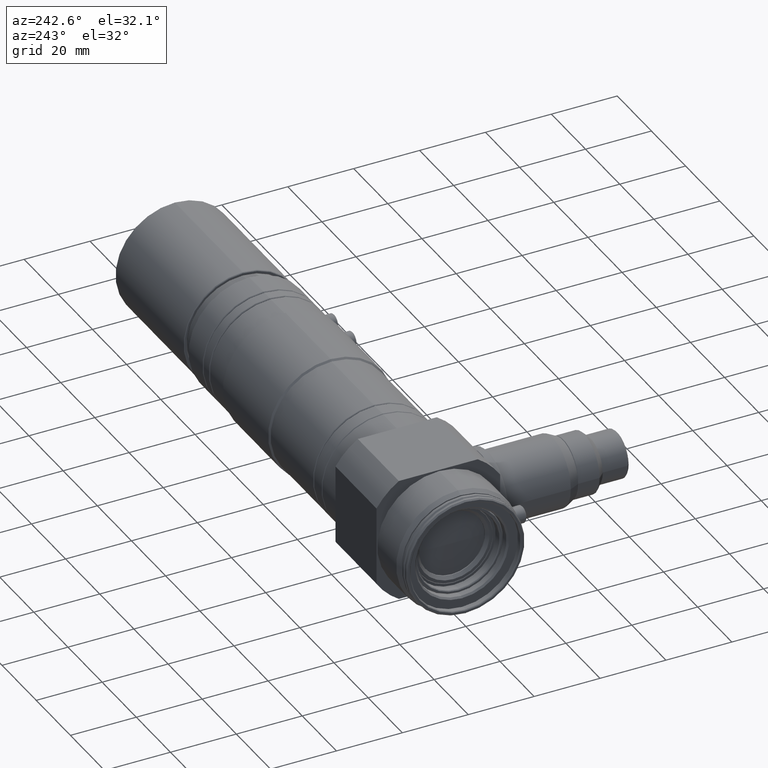
[diagram: clean part render]
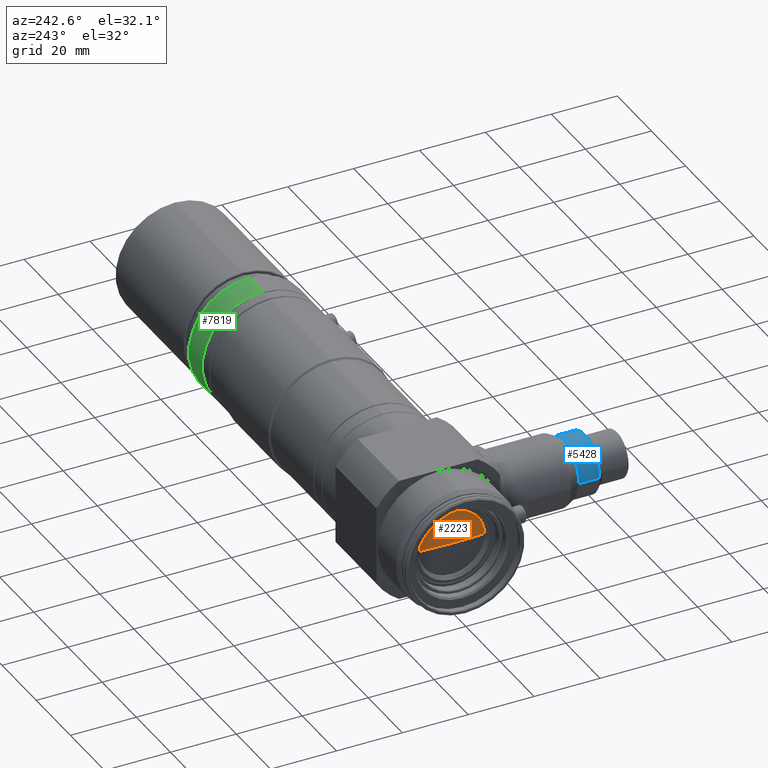
[diagram: same view with three faces highlighted in distinct colors, each labeled with its STEP entity id]
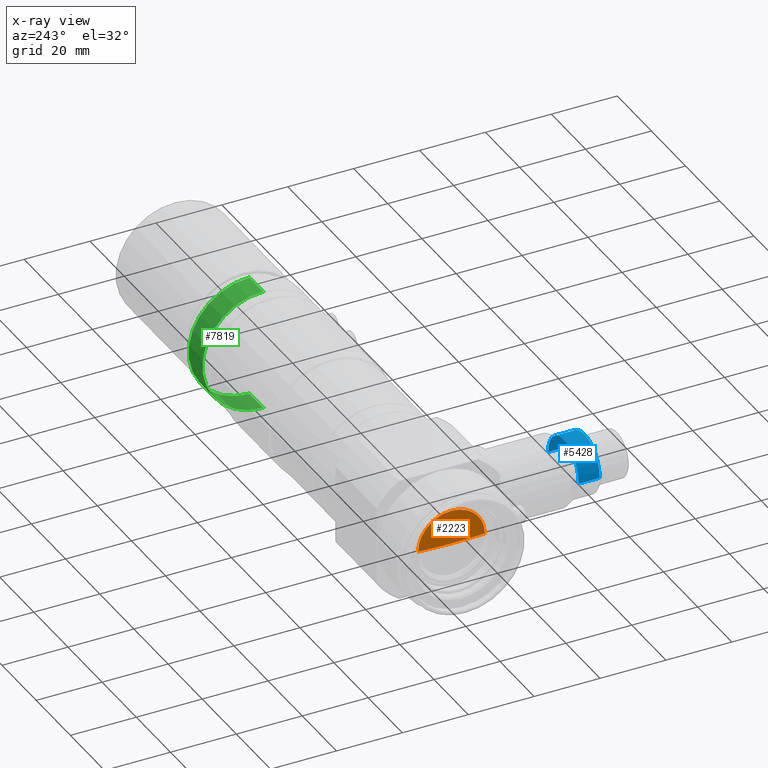
[diagram: x-ray of the same camera — body ghosted, the three highlighted faces saturated]
A machine part, auxiliary view with three faces highlighted in distinct colors.
The next image is the same camera in x-ray (body ghosted, the three faces saturated) — at least one of them is partly hidden behind the body in this view.
Their STEP definitions:

[orange] entity #2223 — the highlighted spherical surface has radius 131.8 mm.
#147 = ORIENTED_EDGE ( 'NONE', *, *, #2726, .F. ) ;
#150 = DIRECTION ( 'NONE',  ( 0.0000000000000000000, 1.000000000000000000, 1.224646799147353000E-016 ) ) ;
#172 = EDGE_CURVE ( 'NONE', #6567, #4218, #610, .T. ) ;
#414 = CIRCLE ( 'NONE', #4610, 131.7999999999999800 ) ;
#519 = EDGE_LOOP ( 'NONE', ( #147, #3104, #5121, #2106 ) ) ;
#610 = CIRCLE ( 'NONE', #5006, 131.8000000000000100 ) ;
#734 = VERTEX_POINT ( 'NONE', #6231 ) ;
#2040 = CARTESIAN_POINT ( 'NONE',  ( 8.448532300058333900, 0.0000000000000000000, 0.0000000000000000000 ) ) ;
#2106 = ORIENTED_EDGE ( 'NONE', *, *, #172, .T. ) ;
#2223 = ADVANCED_FACE ( 'NONE', ( #3598 ), #3798, .T. ) ;
#2524 = DIRECTION ( 'NONE',  ( -0.0000000000000000000, 0.0000000000000000000, 1.000000000000000000 ) ) ;
#2673 = DIRECTION ( 'NONE',  ( 0.0000000000000000000, 0.0000000000000000000, 1.000000000000000000 ) ) ;
#2726 = EDGE_CURVE ( 'NONE', #5242, #4218, #414, .T. ) ;
#2886 = CARTESIAN_POINT ( 'NONE',  ( 8.060974633347289100, -2.070352886147430100E-013, 0.0000000000000000000 ) ) ;
#2887 = CIRCLE ( 'NONE', #6323, 10.10000000000006700 ) ;
#3086 = CIRCLE ( 'NONE', #6869, 10.10000000000006700 ) ;
#3104 = ORIENTED_EDGE ( 'NONE', *, *, #7690, .T. ) ;
#3145 = CARTESIAN_POINT ( 'NONE',  ( 139.8609746333472700, -2.151057110211240800E-013, 0.0000000000000000000 ) ) ;
#3570 = DIRECTION ( 'NONE',  ( -1.000000000000000000, -0.0000000000000000000, -0.0000000000000000000 ) ) ;
#3598 = FACE_OUTER_BOUND ( 'NONE', #519, .T. ) ;
#3798 = SPHERICAL_SURFACE ( 'NONE', #6156, 131.7999999999999800 ) ;
#3868 = DIRECTION ( 'NONE',  ( 0.0000000000000000000, 1.224646799147353200E-016, -1.000000000000000000 ) ) ;
#4218 = VERTEX_POINT ( 'NONE', #2886 ) ;
#4345 = CARTESIAN_POINT ( 'NONE',  ( 8.448532300058341000, -10.10000000000030300, -1.236893267138837700E-015 ) ) ;
#4610 = AXIS2_PLACEMENT_3D ( 'NONE', #7611, #3868, #150 ) ;
#4932 = DIRECTION ( 'NONE',  ( -0.0000000000000000000, 0.0000000000000000000, -1.000000000000000000 ) ) ;
#5006 = AXIS2_PLACEMENT_3D ( 'NONE', #3145, #2524, #6246 ) ;
#5120 = EDGE_CURVE ( 'NONE', #734, #6567, #3086, .T. ) ;
#5121 = ORIENTED_EDGE ( 'NONE', *, *, #5120, .T. ) ;
#5242 = VERTEX_POINT ( 'NONE', #4345 ) ;
#5568 = CARTESIAN_POINT ( 'NONE',  ( 8.448532300058341000, 10.10000000000008800, 0.0000000000000000000 ) ) ;
#6156 = AXIS2_PLACEMENT_3D ( 'NONE', #7420, #4932, #6175 ) ;
#6175 = DIRECTION ( 'NONE',  ( 0.0000000000000000000, 1.000000000000000000, 0.0000000000000000000 ) ) ;
#6231 = CARTESIAN_POINT ( 'NONE',  ( 8.448532300058333900, 1.236893267138834900E-015, 10.10000000000006700 ) ) ;
#6246 = DIRECTION ( 'NONE',  ( 1.000000000000000000, 0.0000000000000000000, 0.0000000000000000000 ) ) ;
#6323 = AXIS2_PLACEMENT_3D ( 'NONE', #2040, #6402, #2673 ) ;
#6402 = DIRECTION ( 'NONE',  ( -1.000000000000000000, -0.0000000000000000000, -0.0000000000000000000 ) ) ;
#6567 = VERTEX_POINT ( 'NONE', #5568 ) ;
#6869 = AXIS2_PLACEMENT_3D ( 'NONE', #7313, #3570, #7962 ) ;
#7313 = CARTESIAN_POINT ( 'NONE',  ( 8.448532300058333900, 0.0000000000000000000, 0.0000000000000000000 ) ) ;
#7420 = CARTESIAN_POINT ( 'NONE',  ( 139.8609746333472700, -2.151057110211240800E-013, 0.0000000000000000000 ) ) ;
#7611 = CARTESIAN_POINT ( 'NONE',  ( 139.8609746333472700, -2.151057110211240800E-013, 0.0000000000000000000 ) ) ;
#7690 = EDGE_CURVE ( 'NONE', #5242, #734, #2887, .T. ) ;
#7962 = DIRECTION ( 'NONE',  ( 0.0000000000000000000, 0.0000000000000000000, 1.000000000000000000 ) ) ;

[blue] entity #5428 — the highlighted cylindrical surface (edge-blend (fillet) strip) has radius 9 mm, axis along (0, -1, -0).
#425 = EDGE_CURVE ( 'NONE', #3670, #3927, #1769, .T. ) ;
#510 = DIRECTION ( 'NONE',  ( 1.000000000000000000, 0.0000000000000000000, 0.0000000000000000000 ) ) ;
#528 = VERTEX_POINT ( 'NONE', #2315 ) ;
#1458 = DIRECTION ( 'NONE',  ( 1.429687188328460900E-016, -1.000000000000000000, -0.0000000000000000000 ) ) ;
#1542 = CARTESIAN_POINT ( 'NONE',  ( 19.13177593066235000, -50.49999999999997900, 0.0000000000000000000 ) ) ;
#1769 = LINE ( 'NONE', #6496, #4906 ) ;
#1822 = LINE ( 'NONE', #7063, #4948 ) ;
#1876 = ORIENTED_EDGE ( 'NONE', *, *, #425, .T. ) ;
#2239 = CIRCLE ( 'NONE', #3161, 8.999999999999998200 ) ;
#2315 = CARTESIAN_POINT ( 'NONE',  ( 37.13177593066234300, -44.19999999999998200, 0.0000000000000000000 ) ) ;
#2326 = EDGE_LOOP ( 'NONE', ( #8010, #1876, #3663, #2669 ) ) ;
#2357 = CARTESIAN_POINT ( 'NONE',  ( 37.13177593066234300, -50.49999999999997900, 1.102182119232618100E-015 ) ) ;
#2669 = ORIENTED_EDGE ( 'NONE', *, *, #5466, .F. ) ;
#2936 = EDGE_CURVE ( 'NONE', #528, #3670, #7536, .T. ) ;
#3161 = AXIS2_PLACEMENT_3D ( 'NONE', #8002, #4254, #510 ) ;
#3663 = ORIENTED_EDGE ( 'NONE', *, *, #6107, .F. ) ;
#3670 = VERTEX_POINT ( 'NONE', #4389 ) ;
#3714 = DIRECTION ( 'NONE',  ( 1.429687188328460900E-016, -1.000000000000000000, -0.0000000000000000000 ) ) ;
#3927 = VERTEX_POINT ( 'NONE', #1542 ) ;
#4048 = VERTEX_POINT ( 'NONE', #2357 ) ;
#4254 = DIRECTION ( 'NONE',  ( 1.429687188328460900E-016, -1.000000000000000000, -0.0000000000000000000 ) ) ;
#4389 = CARTESIAN_POINT ( 'NONE',  ( 19.13177593066234300, -44.19999999999998200, 1.102182119232618100E-015 ) ) ;
#4533 = DIRECTION ( 'NONE',  ( 1.429687188328460900E-016, -1.000000000000000000, -0.0000000000000000000 ) ) ;
#4555 = CARTESIAN_POINT ( 'NONE',  ( 28.13177593066234600, -60.60000000000000100, 0.0000000000000000000 ) ) ;
#4894 = AXIS2_PLACEMENT_3D ( 'NONE', #4555, #4533, #5192 ) ;
#4906 = VECTOR ( 'NONE', #5087, 1000.000000000000000 ) ;
#4948 = VECTOR ( 'NONE', #1458, 1000.000000000000000 ) ;
#5087 = DIRECTION ( 'NONE',  ( 1.429687188328460900E-016, -1.000000000000000000, -0.0000000000000000000 ) ) ;
#5153 = CYLINDRICAL_SURFACE ( 'NONE', #4894, 8.999999999999998200 ) ;
#5192 = DIRECTION ( 'NONE',  ( 1.000000000000000000, 0.0000000000000000000, 0.0000000000000000000 ) ) ;
#5428 = ADVANCED_FACE ( 'NONE', ( #5739 ), #5153, .T. ) ;
#5466 = EDGE_CURVE ( 'NONE', #528, #4048, #1822, .T. ) ;
#5739 = FACE_OUTER_BOUND ( 'NONE', #2326, .T. ) ;
#6107 = EDGE_CURVE ( 'NONE', #4048, #3927, #2239, .T. ) ;
#6496 = CARTESIAN_POINT ( 'NONE',  ( 19.13177593066234600, -60.60000000000000100, 1.102182119232617900E-015 ) ) ;
#6535 = AXIS2_PLACEMENT_3D ( 'NONE', #7463, #3714, #8092 ) ;
#7063 = CARTESIAN_POINT ( 'NONE',  ( 37.13177593066234300, -60.60000000000000100, 0.0000000000000000000 ) ) ;
#7463 = CARTESIAN_POINT ( 'NONE',  ( 28.13177593066234300, -44.19999999999998200, 0.0000000000000000000 ) ) ;
#7536 = CIRCLE ( 'NONE', #6535, 9.000000000000001800 ) ;
#8002 = CARTESIAN_POINT ( 'NONE',  ( 28.13177593066234600, -50.49999999999997900, 0.0000000000000000000 ) ) ;
#8010 = ORIENTED_EDGE ( 'NONE', *, *, #2936, .T. ) ;
#8092 = DIRECTION ( 'NONE',  ( 1.000000000000000000, 0.0000000000000000000, 0.0000000000000000000 ) ) ;

[green] entity #7819 — the highlighted cylindrical surface (partial cylindrical patch) has radius 18.5 mm, axis along (-1, -0, -0).
#272 = VECTOR ( 'NONE', #1555, 1000.000000000000000 ) ;
#405 = CARTESIAN_POINT ( 'NONE',  ( 126.6309746333472200, 2.265596578422620000E-015, -18.50000000000013500 ) ) ;
#536 = AXIS2_PLACEMENT_3D ( 'NONE', #2388, #6745, #3003 ) ;
#615 = VERTEX_POINT ( 'NONE', #7374 ) ;
#620 = EDGE_LOOP ( 'NONE', ( #6069, #1479, #6116, #5613 ) ) ;
#952 = DIRECTION ( 'NONE',  ( 0.0000000000000000000, 0.0000000000000000000, 1.000000000000000000 ) ) ;
#1020 = VERTEX_POINT ( 'NONE', #1468 ) ;
#1053 = CIRCLE ( 'NONE', #536, 18.50000000000013500 ) ;
#1408 = CARTESIAN_POINT ( 'NONE',  ( 126.6309746333472200, 0.0000000000000000000, 18.50000000000013500 ) ) ;
#1468 = CARTESIAN_POINT ( 'NONE',  ( 118.5309746333471700, 2.265596578422620000E-015, -18.50000000000013500 ) ) ;
#1478 = DIRECTION ( 'NONE',  ( -1.000000000000000000, -0.0000000000000000000, -0.0000000000000000000 ) ) ;
#1479 = ORIENTED_EDGE ( 'NONE', *, *, #7811, .T. ) ;
#1555 = DIRECTION ( 'NONE',  ( -1.000000000000000000, -0.0000000000000000000, -0.0000000000000000000 ) ) ;
#2069 = DIRECTION ( 'NONE',  ( -1.000000000000000000, -0.0000000000000000000, -0.0000000000000000000 ) ) ;
#2388 = CARTESIAN_POINT ( 'NONE',  ( 118.5309746333471700, 0.0000000000000000000, 0.0000000000000000000 ) ) ;
#2731 = CARTESIAN_POINT ( 'NONE',  ( 8.060974633347258900, 0.0000000000000000000, 18.50000000000013500 ) ) ;
#3003 = DIRECTION ( 'NONE',  ( 0.0000000000000000000, 0.0000000000000000000, 1.000000000000000000 ) ) ;
#3084 = VECTOR ( 'NONE', #1478, 1000.000000000000000 ) ;
#3181 = CYLINDRICAL_SURFACE ( 'NONE', #5988, 18.50000000000013500 ) ;
#4199 = CIRCLE ( 'NONE', #6848, 18.50000000000013500 ) ;
#4703 = CARTESIAN_POINT ( 'NONE',  ( 8.060974633347258900, 0.0000000000000000000, 0.0000000000000000000 ) ) ;
#4951 = LINE ( 'NONE', #2731, #3084 ) ;
#5613 = ORIENTED_EDGE ( 'NONE', *, *, #7139, .F. ) ;
#5809 = CARTESIAN_POINT ( 'NONE',  ( 126.6309746333472200, 0.0000000000000000000, 0.0000000000000000000 ) ) ;
#5846 = VERTEX_POINT ( 'NONE', #1408 ) ;
#5921 = CARTESIAN_POINT ( 'NONE',  ( 8.060974633347258900, 2.265596578422620000E-015, -18.50000000000013500 ) ) ;
#5988 = AXIS2_PLACEMENT_3D ( 'NONE', #4703, #6542, #952 ) ;
#6016 = VERTEX_POINT ( 'NONE', #405 ) ;
#6069 = ORIENTED_EDGE ( 'NONE', *, *, #6353, .T. ) ;
#6116 = ORIENTED_EDGE ( 'NONE', *, *, #6776, .F. ) ;
#6353 = EDGE_CURVE ( 'NONE', #5846, #6016, #4199, .T. ) ;
#6434 = DIRECTION ( 'NONE',  ( 0.0000000000000000000, 0.0000000000000000000, 1.000000000000000000 ) ) ;
#6498 = FACE_OUTER_BOUND ( 'NONE', #620, .T. ) ;
#6542 = DIRECTION ( 'NONE',  ( -1.000000000000000000, -0.0000000000000000000, -0.0000000000000000000 ) ) ;
#6696 = LINE ( 'NONE', #5921, #272 ) ;
#6745 = DIRECTION ( 'NONE',  ( -1.000000000000000000, -0.0000000000000000000, -0.0000000000000000000 ) ) ;
#6776 = EDGE_CURVE ( 'NONE', #615, #1020, #1053, .T. ) ;
#6848 = AXIS2_PLACEMENT_3D ( 'NONE', #5809, #2069, #6434 ) ;
#7139 = EDGE_CURVE ( 'NONE', #5846, #615, #4951, .T. ) ;
#7374 = CARTESIAN_POINT ( 'NONE',  ( 118.5309746333471700, 0.0000000000000000000, 18.50000000000013500 ) ) ;
#7811 = EDGE_CURVE ( 'NONE', #6016, #1020, #6696, .T. ) ;
#7819 = ADVANCED_FACE ( 'NONE', ( #6498 ), #3181, .T. ) ;